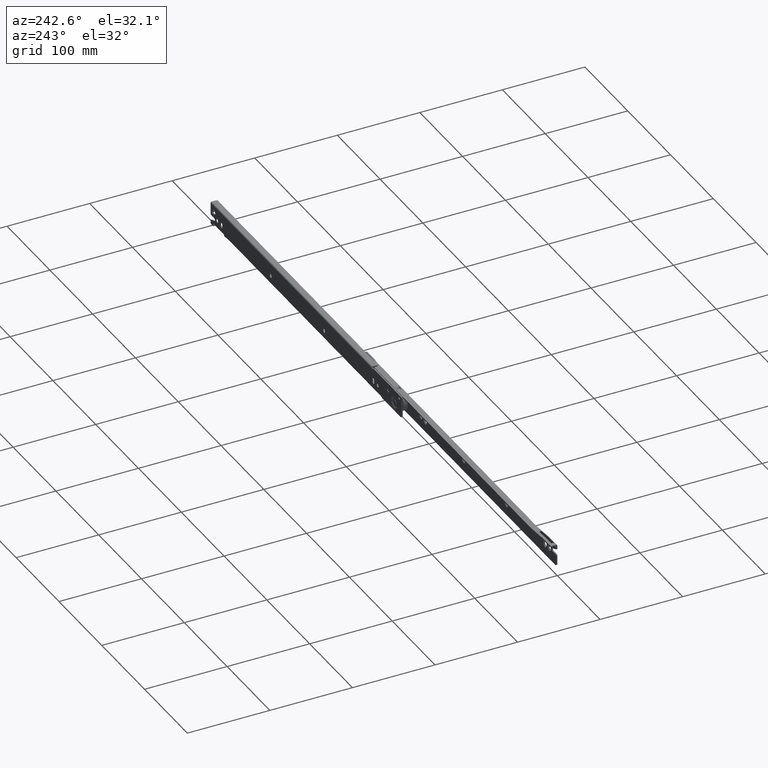
[diagram: clean part render]
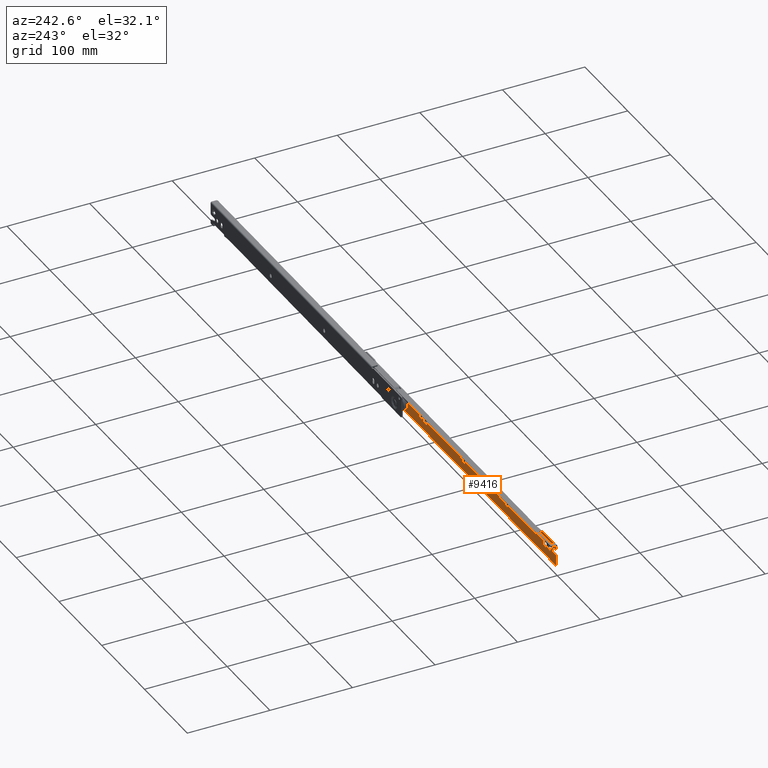
[diagram: same view with one face highlighted and labeled with its STEP entity id]
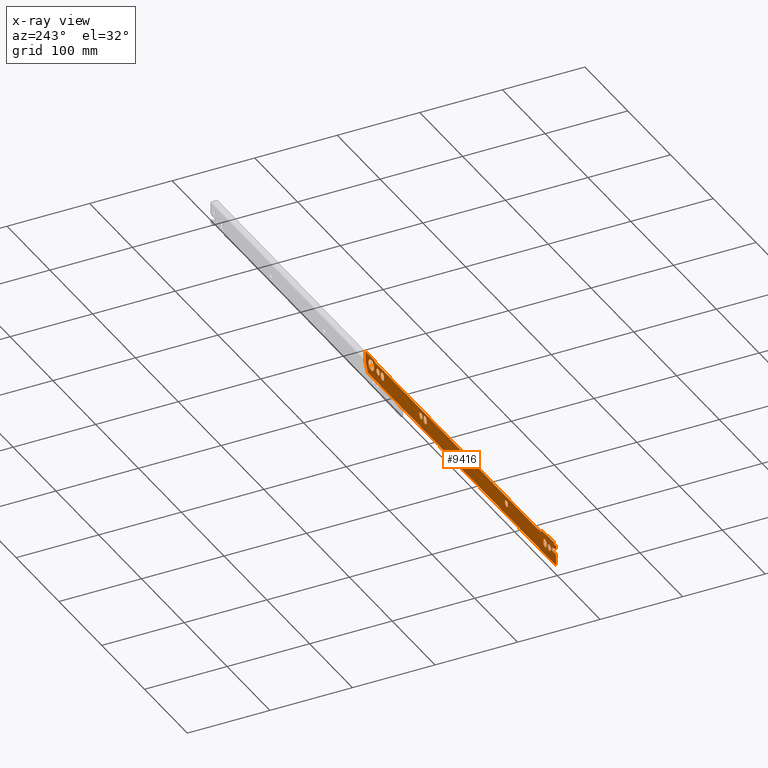
[diagram: x-ray of the same camera — body ghosted, the highlighted face saturated]
A machine part, auxiliary view. The second image highlights one B-rep face of the part: STEP entity #9416.
The next image is the same camera in x-ray: the body ghosted, the highlighted face saturated — about 0% of this face is hidden behind the body in this view.
In plain terms, the highlighted face is a freeform B-spline surface patch.
Its self-contained STEP definition (entity closure, byte-faithful):
#5309=CARTESIAN_POINT('',(412.261559997824920,1.500000001946444,14.294221622718309));
#5310=VERTEX_POINT('',#5309);
#5316=CARTESIAN_POINT('',(416.0,1.500000000000000,17.750000000000000));
#5317=VERTEX_POINT('',#5316);
#5318=CARTESIAN_POINT('',(416.0,1.500000000000000,17.750000000000000));
#5319=CARTESIAN_POINT('',(412.533535681583540,1.500000000000001,17.750000000000011));
#5320=CARTESIAN_POINT('',(412.261559997824860,1.500000001946444,14.294221622718311));
#5328=(BOUNDED_CURVE()B_SPLINE_CURVE(2,(#5318,#5319,#5320),.UNSPECIFIED.,.F.,.U.)B_SPLINE_CURVE_WITH_KNOTS((3,3),(0.0,0.236331299385391),.UNSPECIFIED.)CURVE()GEOMETRIC_REPRESENTATION_ITEM()RATIONAL_B_SPLINE_CURVE((1.0,0.723120660066588,0.969723353568637))REPRESENTATION_ITEM(''));
#5329=EDGE_CURVE('',#5317,#5310,#5328,.T.);
#5331=CARTESIAN_POINT('',(419.738440002175200,1.500000001946422,13.705778377281700));
#5332=VERTEX_POINT('',#5331);
#5333=CARTESIAN_POINT('',(419.738440002175200,1.500000001946422,13.705778377281700));
#5334=CARTESIAN_POINT('',(419.749999999999940,1.500000000000000,13.852662085056684));
#5335=CARTESIAN_POINT('',(419.749999999999890,1.500000000000000,14.0));
#5336=CARTESIAN_POINT('',(419.750000000000000,1.500000000000000,17.750000000000004));
#5337=CARTESIAN_POINT('',(416.0,1.500000000000000,17.750000000000000));
#5345=(BOUNDED_CURVE()B_SPLINE_CURVE(2,(#5333,#5334,#5335,#5336,#5337),.UNSPECIFIED.,.F.,.U.)B_SPLINE_CURVE_WITH_KNOTS((3,2,3),(0.736331299385392,0.750000000000000,1.0),.UNSPECIFIED.)CURVE()GEOMETRIC_REPRESENTATION_ITEM()RATIONAL_B_SPLINE_CURVE((0.969723353568638,0.983986121119960,1.0,0.707106781186547,1.0))REPRESENTATION_ITEM(''));
#5346=EDGE_CURVE('',#5332,#5317,#5345,.T.);
#5422=CARTESIAN_POINT('',(416.0,1.500000000000000,10.250000000000000));
#5423=VERTEX_POINT('',#5422);
#5424=CARTESIAN_POINT('',(416.0,1.500000000000000,10.250000000000000));
#5425=CARTESIAN_POINT('',(419.466464318416340,1.500000000000001,10.250000000000000));
#5426=CARTESIAN_POINT('',(419.738440002175250,1.500000001946422,13.705778377281709));
#5434=(BOUNDED_CURVE()B_SPLINE_CURVE(2,(#5424,#5425,#5426),.UNSPECIFIED.,.F.,.U.)B_SPLINE_CURVE_WITH_KNOTS((3,3),(0.500000000000000,0.736331299385391),.UNSPECIFIED.)CURVE()GEOMETRIC_REPRESENTATION_ITEM()RATIONAL_B_SPLINE_CURVE((1.0,0.723120660066589,0.969723353568636))REPRESENTATION_ITEM(''));
#5435=EDGE_CURVE('',#5423,#5332,#5434,.T.);
#5437=CARTESIAN_POINT('',(412.261559997824920,1.500000001946444,14.294221622718304));
#5438=CARTESIAN_POINT('',(412.250000000000000,1.500000000000001,14.147337914943325));
#5439=CARTESIAN_POINT('',(412.250000000000000,1.500000000000000,14.0));
#5440=CARTESIAN_POINT('',(412.250000000000060,1.500000000000000,10.250000000000000));
#5441=CARTESIAN_POINT('',(416.0,1.500000000000000,10.250000000000000));
#5449=(BOUNDED_CURVE()B_SPLINE_CURVE(2,(#5437,#5438,#5439,#5440,#5441),.UNSPECIFIED.,.F.,.U.)B_SPLINE_CURVE_WITH_KNOTS((3,2,3),(0.236331299385391,0.250000000000000,0.500000000000000),.UNSPECIFIED.)CURVE()GEOMETRIC_REPRESENTATION_ITEM()RATIONAL_B_SPLINE_CURVE((0.969723353568637,0.983986121119959,1.0,0.707106781186547,1.0))REPRESENTATION_ITEM(''));
#5450=EDGE_CURVE('',#5310,#5423,#5449,.T.);
#5491=CARTESIAN_POINT('',(312.261559997824800,1.500000001946456,14.294221622718309));
#5492=VERTEX_POINT('',#5491);
#5498=CARTESIAN_POINT('',(316.0,1.500000000000000,17.750000000000000));
#5499=VERTEX_POINT('',#5498);
#5500=CARTESIAN_POINT('',(316.0,1.500000000000000,17.750000000000000));
#5501=CARTESIAN_POINT('',(312.533535681583600,1.500000000000000,17.750000000000007));
#5502=CARTESIAN_POINT('',(312.261559997824800,1.500000001946457,14.294221622718304));
#5510=(BOUNDED_CURVE()B_SPLINE_CURVE(2,(#5500,#5501,#5502),.UNSPECIFIED.,.F.,.U.)B_SPLINE_CURVE_WITH_KNOTS((3,3),(0.0,0.236331299385391),.UNSPECIFIED.)CURVE()GEOMETRIC_REPRESENTATION_ITEM()RATIONAL_B_SPLINE_CURVE((1.0,0.723120660066588,0.969723353568637))REPRESENTATION_ITEM(''));
#5511=EDGE_CURVE('',#5499,#5492,#5510,.T.);
#5513=CARTESIAN_POINT('',(319.738440002175200,1.500000001946456,13.705778377281691));
#5514=VERTEX_POINT('',#5513);
#5515=CARTESIAN_POINT('',(319.738440002175250,1.500000001946456,13.705778377281691));
#5516=CARTESIAN_POINT('',(319.750000000000000,1.500000000000000,13.852662085056677));
#5517=CARTESIAN_POINT('',(319.750000000000000,1.500000000000000,14.0));
#5518=CARTESIAN_POINT('',(319.750000000000060,1.500000000000000,17.750000000000004));
#5519=CARTESIAN_POINT('',(316.0,1.500000000000000,17.750000000000000));
#5527=(BOUNDED_CURVE()B_SPLINE_CURVE(2,(#5515,#5516,#5517,#5518,#5519),.UNSPECIFIED.,.F.,.U.)B_SPLINE_CURVE_WITH_KNOTS((3,2,3),(0.736331299385391,0.750000000000000,1.0),.UNSPECIFIED.)CURVE()GEOMETRIC_REPRESENTATION_ITEM()RATIONAL_B_SPLINE_CURVE((0.969723353568637,0.983986121119959,1.0,0.707106781186547,1.0))REPRESENTATION_ITEM(''));
#5528=EDGE_CURVE('',#5514,#5499,#5527,.T.);
#5604=CARTESIAN_POINT('',(316.0,1.500000000000000,10.250000000000000));
#5605=VERTEX_POINT('',#5604);
#5606=CARTESIAN_POINT('',(316.0,1.500000000000000,10.250000000000000));
#5607=CARTESIAN_POINT('',(319.466464318416460,1.500000000000001,10.250000000000000));
#5608=CARTESIAN_POINT('',(319.738440002175250,1.500000001946457,13.705778377281689));
#5616=(BOUNDED_CURVE()B_SPLINE_CURVE(2,(#5606,#5607,#5608),.UNSPECIFIED.,.F.,.U.)B_SPLINE_CURVE_WITH_KNOTS((3,3),(0.500000000000000,0.736331299385391),.UNSPECIFIED.)CURVE()GEOMETRIC_REPRESENTATION_ITEM()RATIONAL_B_SPLINE_CURVE((1.0,0.723120660066589,0.969723353568636))REPRESENTATION_ITEM(''));
#5617=EDGE_CURVE('',#5605,#5514,#5616,.T.);
#5619=CARTESIAN_POINT('',(312.261559997824800,1.500000001946457,14.294221622718307));
#5620=CARTESIAN_POINT('',(312.249999999999940,1.500000000000000,14.147337914943327));
#5621=CARTESIAN_POINT('',(312.250000000000000,1.500000000000000,14.0));
#5622=CARTESIAN_POINT('',(312.250000000000110,1.500000000000000,10.250000000000000));
#5623=CARTESIAN_POINT('',(316.0,1.500000000000000,10.250000000000000));
#5631=(BOUNDED_CURVE()B_SPLINE_CURVE(2,(#5619,#5620,#5621,#5622,#5623),.UNSPECIFIED.,.F.,.U.)B_SPLINE_CURVE_WITH_KNOTS((3,2,3),(0.236331299385391,0.250000000000000,0.500000000000000),.UNSPECIFIED.)CURVE()GEOMETRIC_REPRESENTATION_ITEM()RATIONAL_B_SPLINE_CURVE((0.969723353568637,0.983986121119959,1.0,0.707106781186547,1.0))REPRESENTATION_ITEM(''));
#5632=EDGE_CURVE('',#5492,#5605,#5631,.T.);
#5673=CARTESIAN_POINT('',(212.261559997824800,1.500000001946453,14.294221622718309));
#5674=VERTEX_POINT('',#5673);
#5680=CARTESIAN_POINT('',(216.0,1.500000000000000,17.750000000000050));
#5681=VERTEX_POINT('',#5680);
#5682=CARTESIAN_POINT('',(216.0,1.500000000000000,17.750000000000050));
#5683=CARTESIAN_POINT('',(212.533535681583520,1.500000000000000,17.750000000000050));
#5684=CARTESIAN_POINT('',(212.261559997824720,1.500000001946453,14.294221622718311));
#5692=(BOUNDED_CURVE()B_SPLINE_CURVE(2,(#5682,#5683,#5684),.UNSPECIFIED.,.F.,.U.)B_SPLINE_CURVE_WITH_KNOTS((3,3),(0.0,0.236331299385391),.UNSPECIFIED.)CURVE()GEOMETRIC_REPRESENTATION_ITEM()RATIONAL_B_SPLINE_CURVE((1.0,0.723120660066588,0.969723353568637))REPRESENTATION_ITEM(''));
#5693=EDGE_CURVE('',#5681,#5674,#5692,.T.);
#5695=CARTESIAN_POINT('',(219.738440002175200,1.500000001946456,13.705778377281691));
#5696=VERTEX_POINT('',#5695);
#5697=CARTESIAN_POINT('',(219.738440002175200,1.500000001946455,13.705778377281696));
#5698=CARTESIAN_POINT('',(219.750000000000110,1.500000000000001,13.852662085056675));
#5699=CARTESIAN_POINT('',(219.750000000000110,1.500000000000000,14.0));
#5700=CARTESIAN_POINT('',(219.750000000000110,1.500000000000000,17.750000000000057));
#5701=CARTESIAN_POINT('',(216.0,1.500000000000000,17.750000000000050));
#5709=(BOUNDED_CURVE()B_SPLINE_CURVE(2,(#5697,#5698,#5699,#5700,#5701),.UNSPECIFIED.,.F.,.U.)B_SPLINE_CURVE_WITH_KNOTS((3,2,3),(0.736331299385391,0.750000000000000,1.0),.UNSPECIFIED.)CURVE()GEOMETRIC_REPRESENTATION_ITEM()RATIONAL_B_SPLINE_CURVE((0.969723353568637,0.983986121119959,1.0,0.707106781186548,1.0))REPRESENTATION_ITEM(''));
#5710=EDGE_CURVE('',#5696,#5681,#5709,.T.);
#5786=CARTESIAN_POINT('',(216.0,1.500000000000000,10.249999999999950));
#5787=VERTEX_POINT('',#5786);
#5788=CARTESIAN_POINT('',(216.0,1.500000000000000,10.249999999999950));
#5789=CARTESIAN_POINT('',(219.466464318416540,1.500000000000000,10.249999999999947));
#5790=CARTESIAN_POINT('',(219.738440002175200,1.500000001946456,13.705778377281689));
#5798=(BOUNDED_CURVE()B_SPLINE_CURVE(2,(#5788,#5789,#5790),.UNSPECIFIED.,.F.,.U.)B_SPLINE_CURVE_WITH_KNOTS((3,3),(0.500000000000000,0.736331299385391),.UNSPECIFIED.)CURVE()GEOMETRIC_REPRESENTATION_ITEM()RATIONAL_B_SPLINE_CURVE((1.0,0.723120660066589,0.969723353568636))REPRESENTATION_ITEM(''));
#5799=EDGE_CURVE('',#5787,#5696,#5798,.T.);
#5801=CARTESIAN_POINT('',(212.261559997824750,1.500000001946453,14.294221622718313));
#5802=CARTESIAN_POINT('',(212.249999999999970,1.500000000000000,14.147337914943323));
#5803=CARTESIAN_POINT('',(212.249999999999890,1.500000000000000,14.0));
#5804=CARTESIAN_POINT('',(212.249999999999970,1.500000000000000,10.249999999999945));
#5805=CARTESIAN_POINT('',(216.0,1.500000000000000,10.249999999999950));
#5813=(BOUNDED_CURVE()B_SPLINE_CURVE(2,(#5801,#5802,#5803,#5804,#5805),.UNSPECIFIED.,.F.,.U.)B_SPLINE_CURVE_WITH_KNOTS((3,2,3),(0.236331299385391,0.250000000000000,0.500000000000000),.UNSPECIFIED.)CURVE()GEOMETRIC_REPRESENTATION_ITEM()RATIONAL_B_SPLINE_CURVE((0.969723353568637,0.983986121119959,1.0,0.707106781186548,1.0))REPRESENTATION_ITEM(''));
#5814=EDGE_CURVE('',#5674,#5787,#5813,.T.);
#5855=CARTESIAN_POINT('',(112.261559997824800,1.500000001946451,14.294221622718309));
#5856=VERTEX_POINT('',#5855);
#5862=CARTESIAN_POINT('',(116.0,1.500000000000000,17.750000000000050));
#5863=VERTEX_POINT('',#5862);
#5864=CARTESIAN_POINT('',(116.0,1.500000000000000,17.750000000000050));
#5865=CARTESIAN_POINT('',(112.533535681583500,1.500000000000000,17.750000000000057));
#5866=CARTESIAN_POINT('',(112.261559997824780,1.500000001946451,14.294221622718315));
#5874=(BOUNDED_CURVE()B_SPLINE_CURVE(2,(#5864,#5865,#5866),.UNSPECIFIED.,.F.,.U.)B_SPLINE_CURVE_WITH_KNOTS((3,3),(0.0,0.236331299385391),.UNSPECIFIED.)CURVE()GEOMETRIC_REPRESENTATION_ITEM()RATIONAL_B_SPLINE_CURVE((1.0,0.723120660066589,0.969723353568637))REPRESENTATION_ITEM(''));
#5875=EDGE_CURVE('',#5863,#5856,#5874,.T.);
#5877=CARTESIAN_POINT('',(119.738440002175300,1.500000001946456,13.705778377281691));
#5878=VERTEX_POINT('',#5877);
#5879=CARTESIAN_POINT('',(119.738440002175300,1.500000001946456,13.705778377281693));
#5880=CARTESIAN_POINT('',(119.750000000000100,1.500000000000000,13.852662085056682));
#5881=CARTESIAN_POINT('',(119.750000000000100,1.500000000000000,14.0));
#5882=CARTESIAN_POINT('',(119.750000000000070,1.500000000000000,17.750000000000057));
#5883=CARTESIAN_POINT('',(116.0,1.500000000000000,17.750000000000050));
#5891=(BOUNDED_CURVE()B_SPLINE_CURVE(2,(#5879,#5880,#5881,#5882,#5883),.UNSPECIFIED.,.F.,.U.)B_SPLINE_CURVE_WITH_KNOTS((3,2,3),(0.736331299385391,0.750000000000000,1.0),.UNSPECIFIED.)CURVE()GEOMETRIC_REPRESENTATION_ITEM()RATIONAL_B_SPLINE_CURVE((0.969723353568637,0.983986121119959,1.0,0.707106781186548,1.0))REPRESENTATION_ITEM(''));
#5892=EDGE_CURVE('',#5878,#5863,#5891,.T.);
#5968=CARTESIAN_POINT('',(116.0,1.500000000000000,10.249999999999950));
#5969=VERTEX_POINT('',#5968);
#5970=CARTESIAN_POINT('',(116.0,1.500000000000000,10.249999999999950));
#5971=CARTESIAN_POINT('',(119.466464318416510,1.500000000000000,10.249999999999947));
#5972=CARTESIAN_POINT('',(119.738440002175220,1.500000001946457,13.705778377281689));
#5980=(BOUNDED_CURVE()B_SPLINE_CURVE(2,(#5970,#5971,#5972),.UNSPECIFIED.,.F.,.U.)B_SPLINE_CURVE_WITH_KNOTS((3,3),(0.500000000000000,0.736331299385391),.UNSPECIFIED.)CURVE()GEOMETRIC_REPRESENTATION_ITEM()RATIONAL_B_SPLINE_CURVE((1.0,0.723120660066589,0.969723353568636))REPRESENTATION_ITEM(''));
#5981=EDGE_CURVE('',#5969,#5878,#5980,.T.);
#5983=CARTESIAN_POINT('',(112.261559997824790,1.500000001946451,14.294221622718316));
#5984=CARTESIAN_POINT('',(112.249999999999900,1.499999999999999,14.147337914943325));
#5985=CARTESIAN_POINT('',(112.249999999999900,1.500000000000000,14.0));
#5986=CARTESIAN_POINT('',(112.249999999999930,1.500000000000000,10.249999999999945));
#5987=CARTESIAN_POINT('',(116.0,1.500000000000000,10.249999999999950));
#5995=(BOUNDED_CURVE()B_SPLINE_CURVE(2,(#5983,#5984,#5985,#5986,#5987),.UNSPECIFIED.,.F.,.U.)B_SPLINE_CURVE_WITH_KNOTS((3,2,3),(0.236331299385391,0.250000000000000,0.500000000000000),.UNSPECIFIED.)CURVE()GEOMETRIC_REPRESENTATION_ITEM()RATIONAL_B_SPLINE_CURVE((0.969723353568637,0.983986121119959,1.0,0.707106781186548,1.0))REPRESENTATION_ITEM(''));
#5996=EDGE_CURVE('',#5856,#5969,#5995,.T.);
#6295=CARTESIAN_POINT('',(438.499752501344180,1.499999998474266,14.056722492052620));
#6296=VERTEX_POINT('',#6295);
#6302=CARTESIAN_POINT('',(432.0,1.500000000000000,7.500000000000001));
#6303=VERTEX_POINT('',#6302);
#6304=CARTESIAN_POINT('',(438.499752501344230,1.499999998474266,14.056722492052616));
#6305=CARTESIAN_POINT('',(438.500000000000000,1.500000000000000,14.028361791635083));
#6306=CARTESIAN_POINT('',(438.500000000000000,1.500000000000000,14.0));
#6307=CARTESIAN_POINT('',(438.499999999999890,1.500000000000000,7.500000000000004));
#6308=CARTESIAN_POINT('',(432.0,1.500000000000000,7.500000000000001));
#6316=(BOUNDED_CURVE()B_SPLINE_CURVE(2,(#6304,#6305,#6306,#6307,#6308),.UNSPECIFIED.,.F.,.U.)B_SPLINE_CURVE_WITH_KNOTS((3,2,3),(0.248460105052562,0.250000000000000,0.500000000000000),.UNSPECIFIED.)CURVE()GEOMETRIC_REPRESENTATION_ITEM()RATIONAL_B_SPLINE_CURVE((0.996414026683022,0.998195900848841,1.0,0.707106781186547,1.0))REPRESENTATION_ITEM(''));
#6317=EDGE_CURVE('',#6296,#6303,#6316,.T.);
#6319=CARTESIAN_POINT('',(432.0,1.500000000000000,20.500000000000000));
#6320=VERTEX_POINT('',#6319);
#6321=CARTESIAN_POINT('',(432.0,1.500000000000000,7.500000000000001));
#6322=CARTESIAN_POINT('',(425.500000000000110,1.500000000000000,7.500000000000004));
#6323=CARTESIAN_POINT('',(425.500000000000000,1.500000000000000,14.0));
#6324=CARTESIAN_POINT('',(425.500000000000110,1.500000000000000,20.499999999999996));
#6325=CARTESIAN_POINT('',(432.0,1.500000000000000,20.500000000000000));
#6333=(BOUNDED_CURVE()B_SPLINE_CURVE(2,(#6321,#6322,#6323,#6324,#6325),.UNSPECIFIED.,.F.,.U.)B_SPLINE_CURVE_WITH_KNOTS((3,2,3),(0.500000000000000,0.750000000000000,1.0),.UNSPECIFIED.)CURVE()GEOMETRIC_REPRESENTATION_ITEM()RATIONAL_B_SPLINE_CURVE((1.0,0.707106781186547,1.0,0.707106781186547,1.0))REPRESENTATION_ITEM(''));
#6334=EDGE_CURVE('',#6303,#6320,#6333,.T.);
#6336=CARTESIAN_POINT('',(436.706995161088910,1.499999999994832,18.482655078583800));
#6337=VERTEX_POINT('',#6336);
#6338=CARTESIAN_POINT('',(432.0,1.500000000000000,20.500000000000000));
#6339=CARTESIAN_POINT('',(434.785798909625560,1.500000000000000,20.500000000000004));
#6340=CARTESIAN_POINT('',(436.706995161088910,1.499999999994832,18.482655078583800));
#6348=(BOUNDED_CURVE()B_SPLINE_CURVE(2,(#6338,#6339,#6340),.UNSPECIFIED.,.F.,.U.)B_SPLINE_CURVE_WITH_KNOTS((3,3),(0.0,0.128682976119413),.UNSPECIFIED.)CURVE()GEOMETRIC_REPRESENTATION_ITEM()RATIONAL_B_SPLINE_CURVE((1.0,0.849238515671562,0.853680523243633))REPRESENTATION_ITEM(''));
#6349=EDGE_CURVE('',#6320,#6337,#6348,.T.);
#6387=CARTESIAN_POINT('',(436.706995161088860,1.499999999994831,18.482655078583804));
#6388=CARTESIAN_POINT('',(438.477350819686250,1.500000000000000,16.623699756201106));
#6389=CARTESIAN_POINT('',(438.499752501344180,1.499999998474266,14.056722492052613));
#6397=(BOUNDED_CURVE()B_SPLINE_CURVE(2,(#6387,#6388,#6389),.UNSPECIFIED.,.F.,.U.)B_SPLINE_CURVE_WITH_KNOTS((3,3),(0.128682976119413,0.248460105052561),.UNSPECIFIED.)CURVE()GEOMETRIC_REPRESENTATION_ITEM()RATIONAL_B_SPLINE_CURVE((0.853680523243633,0.857815109882259,0.996414026683021))REPRESENTATION_ITEM(''));
#6398=EDGE_CURVE('',#6337,#6296,#6397,.T.);
#6439=CARTESIAN_POINT('',(12.261559997824770,1.500000001946452,14.294221622718309));
#6440=VERTEX_POINT('',#6439);
#6446=CARTESIAN_POINT('',(16.0,1.500000000000000,17.750000000000039));
#6447=VERTEX_POINT('',#6446);
#6448=CARTESIAN_POINT('',(16.0,1.500000000000000,17.750000000000039));
#6449=CARTESIAN_POINT('',(12.533535681583517,1.500000000000000,17.750000000000050));
#6450=CARTESIAN_POINT('',(12.261559997824770,1.500000001946452,14.294221622718311));
#6458=(BOUNDED_CURVE()B_SPLINE_CURVE(2,(#6448,#6449,#6450),.UNSPECIFIED.,.F.,.U.)B_SPLINE_CURVE_WITH_KNOTS((3,3),(0.0,0.236331299385391),.UNSPECIFIED.)CURVE()GEOMETRIC_REPRESENTATION_ITEM()RATIONAL_B_SPLINE_CURVE((1.0,0.723120660066588,0.969723353568637))REPRESENTATION_ITEM(''));
#6459=EDGE_CURVE('',#6447,#6440,#6458,.T.);
#6461=CARTESIAN_POINT('',(19.738440002175231,1.500000001946452,13.705778377281691));
#6462=VERTEX_POINT('',#6461);
#6463=CARTESIAN_POINT('',(19.738440002175228,1.500000001946452,13.705778377281696));
#6464=CARTESIAN_POINT('',(19.750000000000043,1.500000000000001,13.852662085056675));
#6465=CARTESIAN_POINT('',(19.750000000000050,1.500000000000000,14.0));
#6466=CARTESIAN_POINT('',(19.750000000000050,1.500000000000000,17.750000000000043));
#6467=CARTESIAN_POINT('',(16.0,1.500000000000000,17.750000000000039));
#6475=(BOUNDED_CURVE()B_SPLINE_CURVE(2,(#6463,#6464,#6465,#6466,#6467),.UNSPECIFIED.,.F.,.U.)B_SPLINE_CURVE_WITH_KNOTS((3,2,3),(0.736331299385391,0.750000000000000,1.0),.UNSPECIFIED.)CURVE()GEOMETRIC_REPRESENTATION_ITEM()RATIONAL_B_SPLINE_CURVE((0.969723353568637,0.983986121119959,1.0,0.707106781186548,1.0))REPRESENTATION_ITEM(''));
#6476=EDGE_CURVE('',#6462,#6447,#6475,.T.);
#6552=CARTESIAN_POINT('',(16.0,1.500000000000000,10.249999999999959));
#6553=VERTEX_POINT('',#6552);
#6554=CARTESIAN_POINT('',(16.0,1.500000000000000,10.249999999999959));
#6555=CARTESIAN_POINT('',(19.466464318416467,1.500000000000000,10.249999999999956));
#6556=CARTESIAN_POINT('',(19.738440002175228,1.500000001946452,13.705778377281689));
#6564=(BOUNDED_CURVE()B_SPLINE_CURVE(2,(#6554,#6555,#6556),.UNSPECIFIED.,.F.,.U.)B_SPLINE_CURVE_WITH_KNOTS((3,3),(0.500000000000000,0.736331299385391),.UNSPECIFIED.)CURVE()GEOMETRIC_REPRESENTATION_ITEM()RATIONAL_B_SPLINE_CURVE((1.0,0.723120660066589,0.969723353568636))REPRESENTATION_ITEM(''));
#6565=EDGE_CURVE('',#6553,#6462,#6564,.T.);
#6567=CARTESIAN_POINT('',(12.261559997824770,1.500000001946452,14.294221622718311));
#6568=CARTESIAN_POINT('',(12.249999999999961,1.500000000000000,14.147337914943323));
#6569=CARTESIAN_POINT('',(12.249999999999959,1.500000000000000,14.0));
#6570=CARTESIAN_POINT('',(12.249999999999956,1.500000000000000,10.249999999999956));
#6571=CARTESIAN_POINT('',(16.0,1.500000000000000,10.249999999999959));
#6579=(BOUNDED_CURVE()B_SPLINE_CURVE(2,(#6567,#6568,#6569,#6570,#6571),.UNSPECIFIED.,.F.,.U.)B_SPLINE_CURVE_WITH_KNOTS((3,2,3),(0.236331299385391,0.250000000000000,0.500000000000000),.UNSPECIFIED.)CURVE()GEOMETRIC_REPRESENTATION_ITEM()RATIONAL_B_SPLINE_CURVE((0.969723353568637,0.983986121119959,1.0,0.707106781186548,1.0))REPRESENTATION_ITEM(''));
#6580=EDGE_CURVE('',#6440,#6553,#6579,.T.);
#6955=CARTESIAN_POINT('',(402.250000000000000,1.500000000000000,15.0));
#6956=VERTEX_POINT('',#6955);
#6971=CARTESIAN_POINT('',(402.250000000000000,1.500000000000000,12.999999999999799));
#6972=VERTEX_POINT('',#6971);
#6978=CARTESIAN_POINT('',(402.250000000000000,1.500000000000000,15.0));
#6979=CARTESIAN_POINT('',(402.250000000000000,1.500000000000000,12.999999999999799));
#6980=QUASI_UNIFORM_CURVE('',1,(#6978,#6979),.UNSPECIFIED.,.F.,.U.);
#6981=EDGE_CURVE('',#6956,#6972,#6980,.T.);
#7006=CARTESIAN_POINT('',(409.750000000000000,1.500000000000000,12.999999999999799));
#7007=VERTEX_POINT('',#7006);
#7013=CARTESIAN_POINT('',(402.250000000000110,1.500000000000000,12.999999999999799));
#7014=CARTESIAN_POINT('',(402.249999999999940,1.500000000000000,9.249999999999799));
#7015=CARTESIAN_POINT('',(406.0,1.500000000000000,9.249999999999799));
#7016=CARTESIAN_POINT('',(409.749999999999940,1.500000000000000,9.249999999999799));
#7017=CARTESIAN_POINT('',(409.750000000000000,1.500000000000000,12.999999999999799));
#7025=(BOUNDED_CURVE()B_SPLINE_CURVE(2,(#7013,#7014,#7015,#7016,#7017),.UNSPECIFIED.,.F.,.U.)B_SPLINE_CURVE_WITH_KNOTS((3,2,3),(0.0,0.500000000000000,1.0),.UNSPECIFIED.)CURVE()GEOMETRIC_REPRESENTATION_ITEM()RATIONAL_B_SPLINE_CURVE((1.0,0.707106781186547,1.0,0.707106781186547,1.0))REPRESENTATION_ITEM(''));
#7026=EDGE_CURVE('',#6972,#7007,#7025,.T.);
#7065=CARTESIAN_POINT('',(409.750000000000000,1.500000000000000,15.0));
#7066=VERTEX_POINT('',#7065);
#7090=CARTESIAN_POINT('',(409.750000000000000,1.500000000000000,15.0));
#7091=CARTESIAN_POINT('',(409.749999999999940,1.500000000000000,18.750000000000007));
#7092=CARTESIAN_POINT('',(406.0,1.500000000000000,18.750000000000000));
#7093=CARTESIAN_POINT('',(402.249999999999940,1.500000000000000,18.750000000000007));
#7094=CARTESIAN_POINT('',(402.250000000000110,1.500000000000000,15.0));
#7102=(BOUNDED_CURVE()B_SPLINE_CURVE(2,(#7090,#7091,#7092,#7093,#7094),.UNSPECIFIED.,.F.,.U.)B_SPLINE_CURVE_WITH_KNOTS((3,2,3),(0.0,0.500000000000000,1.0),.UNSPECIFIED.)CURVE()GEOMETRIC_REPRESENTATION_ITEM()RATIONAL_B_SPLINE_CURVE((1.0,0.707106781186547,1.0,0.707106781186547,1.0))REPRESENTATION_ITEM(''));
#7103=EDGE_CURVE('',#7066,#6956,#7102,.T.);
#7120=CARTESIAN_POINT('',(409.750000000000000,1.500000000000000,12.999999999999799));
#7121=CARTESIAN_POINT('',(409.750000000000000,1.500000000000000,15.0));
#7122=QUASI_UNIFORM_CURVE('',1,(#7120,#7121),.UNSPECIFIED.,.F.,.U.);
#7123=EDGE_CURVE('',#7007,#7066,#7122,.T.);
#7133=CARTESIAN_POINT('',(302.250000000000000,1.500000000000000,15.0));
#7134=VERTEX_POINT('',#7133);
#7149=CARTESIAN_POINT('',(302.250000000000000,1.500000000000000,12.999999999999799));
#7150=VERTEX_POINT('',#7149);
#7156=CARTESIAN_POINT('',(302.250000000000000,1.500000000000000,15.0));
#7157=CARTESIAN_POINT('',(302.250000000000000,1.500000000000000,12.999999999999799));
#7158=QUASI_UNIFORM_CURVE('',1,(#7156,#7157),.UNSPECIFIED.,.F.,.U.);
#7159=EDGE_CURVE('',#7134,#7150,#7158,.T.);
#7184=CARTESIAN_POINT('',(309.750000000000000,1.500000000000000,12.999999999999799));
#7185=VERTEX_POINT('',#7184);
#7191=CARTESIAN_POINT('',(302.250000000000000,1.500000000000000,12.999999999999799));
#7192=CARTESIAN_POINT('',(302.250000000000060,1.500000000000000,9.249999999999799));
#7193=CARTESIAN_POINT('',(306.0,1.500000000000000,9.249999999999799));
#7194=CARTESIAN_POINT('',(309.750000000000060,1.500000000000000,9.249999999999799));
#7195=CARTESIAN_POINT('',(309.749999999999890,1.500000000000000,12.999999999999799));
#7203=(BOUNDED_CURVE()B_SPLINE_CURVE(2,(#7191,#7192,#7193,#7194,#7195),.UNSPECIFIED.,.F.,.U.)B_SPLINE_CURVE_WITH_KNOTS((3,2,3),(0.0,0.500000000000000,1.0),.UNSPECIFIED.)CURVE()GEOMETRIC_REPRESENTATION_ITEM()RATIONAL_B_SPLINE_CURVE((1.0,0.707106781186547,1.0,0.707106781186547,1.0))REPRESENTATION_ITEM(''));
#7204=EDGE_CURVE('',#7150,#7185,#7203,.T.);
#7243=CARTESIAN_POINT('',(309.750000000000000,1.500000000000000,15.0));
#7244=VERTEX_POINT('',#7243);
#7268=CARTESIAN_POINT('',(309.749999999999890,1.500000000000000,15.0));
#7269=CARTESIAN_POINT('',(309.750000000000060,1.500000000000000,18.750000000000007));
#7270=CARTESIAN_POINT('',(306.0,1.500000000000000,18.750000000000000));
#7271=CARTESIAN_POINT('',(302.250000000000060,1.500000000000000,18.750000000000007));
#7272=CARTESIAN_POINT('',(302.250000000000000,1.500000000000000,15.0));
#7280=(BOUNDED_CURVE()B_SPLINE_CURVE(2,(#7268,#7269,#7270,#7271,#7272),.UNSPECIFIED.,.F.,.U.)B_SPLINE_CURVE_WITH_KNOTS((3,2,3),(0.0,0.500000000000000,1.0),.UNSPECIFIED.)CURVE()GEOMETRIC_REPRESENTATION_ITEM()RATIONAL_B_SPLINE_CURVE((1.0,0.707106781186547,1.0,0.707106781186547,1.0))REPRESENTATION_ITEM(''));
#7281=EDGE_CURVE('',#7244,#7134,#7280,.T.);
#7298=CARTESIAN_POINT('',(309.750000000000000,1.500000000000000,12.999999999999799));
#7299=CARTESIAN_POINT('',(309.750000000000000,1.500000000000000,15.0));
#7300=QUASI_UNIFORM_CURVE('',1,(#7298,#7299),.UNSPECIFIED.,.F.,.U.);
#7301=EDGE_CURVE('',#7185,#7244,#7300,.T.);
#7873=CARTESIAN_POINT('',(446.0,1.499999999999946,22.0));
#7874=VERTEX_POINT('',#7873);
#7880=CARTESIAN_POINT('',(444.0,1.499999999999946,24.0));
#7881=VERTEX_POINT('',#7880);
#7882=CARTESIAN_POINT('',(446.0,1.499999999999946,22.0));
#7883=CARTESIAN_POINT('',(445.999999999999940,1.499999999999946,23.999999999999996));
#7884=CARTESIAN_POINT('',(444.0,1.499999999999946,24.0));
#7892=(BOUNDED_CURVE()B_SPLINE_CURVE(2,(#7882,#7883,#7884),.UNSPECIFIED.,.F.,.U.)CURVE()GEOMETRIC_REPRESENTATION_ITEM()QUASI_UNIFORM_CURVE()RATIONAL_B_SPLINE_CURVE((1.0,0.707106781186548,1.0))REPRESENTATION_ITEM(''));
#7893=EDGE_CURVE('',#7874,#7881,#7892,.T.);
#7915=CARTESIAN_POINT('',(446.0,1.499999999999946,11.999999999999799));
#7916=VERTEX_POINT('',#7915);
#7922=CARTESIAN_POINT('',(446.0,1.499999999999946,11.999999999999799));
#7923=CARTESIAN_POINT('',(446.0,1.499999999999946,22.0));
#7924=QUASI_UNIFORM_CURVE('',1,(#7922,#7923),.UNSPECIFIED.,.F.,.U.);
#7925=EDGE_CURVE('',#7916,#7874,#7924,.T.);
#7943=CARTESIAN_POINT('',(440.552786384763980,1.499999999999946,1.105572814528704));
#7944=VERTEX_POINT('',#7943);
#7950=CARTESIAN_POINT('',(440.552786384763980,1.499999999999946,1.105572814528704));
#7951=CARTESIAN_POINT('',(446.0,1.499999999999946,11.999999999999799));
#7952=QUASI_UNIFORM_CURVE('',1,(#7950,#7951),.UNSPECIFIED.,.F.,.U.);
#7953=EDGE_CURVE('',#7944,#7916,#7952,.T.);
#7988=CARTESIAN_POINT('',(438.763932000000010,1.499999999999946,0.0));
#7989=VERTEX_POINT('',#7988);
#7995=CARTESIAN_POINT('',(438.763932000000010,1.499999999999946,0.0));
#7996=CARTESIAN_POINT('',(439.999999981770830,1.499999999999947,0.0));
#7997=CARTESIAN_POINT('',(440.552786384764200,1.499999999999946,1.105572814528627));
#8005=(BOUNDED_CURVE()B_SPLINE_CURVE(2,(#7995,#7996,#7997),.UNSPECIFIED.,.F.,.U.)CURVE()GEOMETRIC_REPRESENTATION_ITEM()QUASI_UNIFORM_CURVE()RATIONAL_B_SPLINE_CURVE((1.0,0.850650807539641,1.0))REPRESENTATION_ITEM(''));
#8006=EDGE_CURVE('',#7989,#7944,#8005,.T.);
#8026=CARTESIAN_POINT('',(422.0,1.499999999999946,22.500000000000000));
#8027=VERTEX_POINT('',#8026);
#8033=CARTESIAN_POINT('',(421.0,1.500000000000000,22.500000000000000));
#8034=VERTEX_POINT('',#8033);
#8035=CARTESIAN_POINT('',(422.0,1.499999999999946,22.500000000000000));
#8036=CARTESIAN_POINT('',(421.0,1.500000000000000,22.500000000000000));
#8037=QUASI_UNIFORM_CURVE('',1,(#8035,#8036),.UNSPECIFIED.,.F.,.U.);
#8038=EDGE_CURVE('',#8027,#8034,#8037,.T.);
#8060=CARTESIAN_POINT('',(426.0,1.499999999999946,24.0));
#8061=VERTEX_POINT('',#8060);
#8067=CARTESIAN_POINT('',(426.0,1.499999999999946,24.0));
#8068=CARTESIAN_POINT('',(422.0,1.499999999999946,22.500000000000000));
#8069=QUASI_UNIFORM_CURVE('',1,(#8067,#8068),.UNSPECIFIED.,.F.,.U.);
#8070=EDGE_CURVE('',#8061,#8027,#8069,.T.);
#8087=CARTESIAN_POINT('',(444.0,1.499999999999946,24.0));
#8088=CARTESIAN_POINT('',(426.0,1.499999999999946,24.0));
#8089=QUASI_UNIFORM_CURVE('',1,(#8087,#8088),.UNSPECIFIED.,.F.,.U.);
#8090=EDGE_CURVE('',#7881,#8061,#8089,.T.);
#8101=CARTESIAN_POINT('',(22.250000000000000,1.500000000000000,15.0));
#8102=VERTEX_POINT('',#8101);
#8117=CARTESIAN_POINT('',(22.250000000000000,1.500000000000000,12.999999999999799));
#8118=VERTEX_POINT('',#8117);
#8124=CARTESIAN_POINT('',(22.250000000000000,1.500000000000000,15.0));
#8125=CARTESIAN_POINT('',(22.250000000000000,1.500000000000000,12.999999999999799));
#8126=QUASI_UNIFORM_CURVE('',1,(#8124,#8125),.UNSPECIFIED.,.F.,.U.);
#8127=EDGE_CURVE('',#8102,#8118,#8126,.T.);
#8152=CARTESIAN_POINT('',(29.750000000000000,1.500000000000000,12.999999999999799));
#8153=VERTEX_POINT('',#8152);
#8159=CARTESIAN_POINT('',(22.250000000000000,1.500000000000000,12.999999999999799));
#8160=CARTESIAN_POINT('',(22.249999999999954,1.500000000000000,9.249999999999750));
#8161=CARTESIAN_POINT('',(26.0,1.500000000000000,9.249999999999750));
#8162=CARTESIAN_POINT('',(29.750000000000046,1.500000000000000,9.249999999999750));
#8163=CARTESIAN_POINT('',(29.750000000000050,1.500000000000000,12.999999999999799));
#8171=(BOUNDED_CURVE()B_SPLINE_CURVE(2,(#8159,#8160,#8161,#8162,#8163),.UNSPECIFIED.,.F.,.U.)B_SPLINE_CURVE_WITH_KNOTS((3,2,3),(0.0,0.500000000000000,1.0),.UNSPECIFIED.)CURVE()GEOMETRIC_REPRESENTATION_ITEM()RATIONAL_B_SPLINE_CURVE((1.0,0.707106781186547,1.0,0.707106781186547,1.0))REPRESENTATION_ITEM(''));
#8172=EDGE_CURVE('',#8118,#8153,#8171,.T.);
#8211=CARTESIAN_POINT('',(29.750000000000000,1.500000000000000,15.0));
#8212=VERTEX_POINT('',#8211);
#8236=CARTESIAN_POINT('',(29.750000000000050,1.500000000000000,15.0));
#8237=CARTESIAN_POINT('',(29.750000000000046,1.500000000000000,18.750000000000050));
#8238=CARTESIAN_POINT('',(26.0,1.500000000000000,18.750000000000050));
#8239=CARTESIAN_POINT('',(22.249999999999954,1.500000000000000,18.750000000000050));
#8240=CARTESIAN_POINT('',(22.250000000000000,1.500000000000000,15.0));
#8248=(BOUNDED_CURVE()B_SPLINE_CURVE(2,(#8236,#8237,#8238,#8239,#8240),.UNSPECIFIED.,.F.,.U.)B_SPLINE_CURVE_WITH_KNOTS((3,2,3),(0.0,0.500000000000000,1.0),.UNSPECIFIED.)CURVE()GEOMETRIC_REPRESENTATION_ITEM()RATIONAL_B_SPLINE_CURVE((1.0,0.707106781186547,1.0,0.707106781186547,1.0))REPRESENTATION_ITEM(''));
#8249=EDGE_CURVE('',#8212,#8102,#8248,.T.);
#8266=CARTESIAN_POINT('',(29.750000000000000,1.500000000000000,12.999999999999799));
#8267=CARTESIAN_POINT('',(29.750000000000000,1.500000000000000,15.0));
#8268=QUASI_UNIFORM_CURVE('',1,(#8266,#8267),.UNSPECIFIED.,.F.,.U.);
#8269=EDGE_CURVE('',#8153,#8212,#8268,.T.);
#8279=CARTESIAN_POINT('',(34.500000000000000,1.500000000000000,25.077586206896498));
#8280=VERTEX_POINT('',#8279);
#8295=CARTESIAN_POINT('',(34.500000000000000,1.500000000000000,23.575193530534701));
#8296=VERTEX_POINT('',#8295);
#8302=CARTESIAN_POINT('',(34.500000000000000,1.500000000000000,23.575193530534701));
#8303=CARTESIAN_POINT('',(34.500000000000000,1.500000000000000,25.077586206896498));
#8304=QUASI_UNIFORM_CURVE('',1,(#8302,#8303),.UNSPECIFIED.,.F.,.U.);
#8305=EDGE_CURVE('',#8296,#8280,#8304,.T.);
#8324=CARTESIAN_POINT('',(5.0,1.500000000000000,26.500000000000000));
#8325=VERTEX_POINT('',#8324);
#8331=CARTESIAN_POINT('',(5.0,1.500000000000000,25.0));
#8332=VERTEX_POINT('',#8331);
#8333=CARTESIAN_POINT('',(5.0,1.500000000000000,25.0));
#8334=CARTESIAN_POINT('',(5.0,1.500000000000000,26.500000000000000));
#8335=QUASI_UNIFORM_CURVE('',1,(#8333,#8334),.UNSPECIFIED.,.F.,.U.);
#8336=EDGE_CURVE('',#8332,#8325,#8335,.T.);
#8561=CARTESIAN_POINT('',(18.0,1.500000000000055,26.500000000000000));
#8562=VERTEX_POINT('',#8561);
#8591=CARTESIAN_POINT('',(18.0,1.500000000000055,26.500000000000000));
#8592=CARTESIAN_POINT('',(34.500000000000000,1.500000000000000,25.077586206896498));
#8593=QUASI_UNIFORM_CURVE('',1,(#8591,#8592),.UNSPECIFIED.,.F.,.U.);
#8594=EDGE_CURVE('',#8562,#8280,#8593,.T.);
#8636=CARTESIAN_POINT('',(5.0,1.500000000000000,26.500000000000000));
#8637=CARTESIAN_POINT('',(18.0,1.500000000000055,26.500000000000000));
#8638=QUASI_UNIFORM_CURVE('',1,(#8636,#8637),.UNSPECIFIED.,.F.,.U.);
#8639=EDGE_CURVE('',#8325,#8562,#8638,.T.);
#8654=CARTESIAN_POINT('',(0.0,1.500000000000000,25.0));
#8655=VERTEX_POINT('',#8654);
#8677=CARTESIAN_POINT('',(5.0,1.500000000000000,25.0));
#8678=CARTESIAN_POINT('',(0.0,1.500000000000000,25.0));
#8679=QUASI_UNIFORM_CURVE('',1,(#8677,#8678),.UNSPECIFIED.,.F.,.U.);
#8680=EDGE_CURVE('',#8332,#8655,#8679,.T.);
#8700=CARTESIAN_POINT('',(47.0,1.500000000000000,22.500000000000000));
#8701=VERTEX_POINT('',#8700);
#8707=CARTESIAN_POINT('',(47.0,1.500000000000000,22.500000000000000));
#8708=CARTESIAN_POINT('',(34.500000000000000,1.500000000000000,23.575193530534701));
#8709=QUASI_UNIFORM_CURVE('',1,(#8707,#8708),.UNSPECIFIED.,.F.,.U.);
#8710=EDGE_CURVE('',#8701,#8296,#8709,.T.);
#8730=CARTESIAN_POINT('',(-9.947598E-014,1.499999999999946,12.500000000000000));
#8731=VERTEX_POINT('',#8730);
#8737=CARTESIAN_POINT('',(0.0,1.499999999999946,2.0));
#8738=VERTEX_POINT('',#8737);
#8739=CARTESIAN_POINT('',(-9.947598E-014,1.499999999999946,12.500000000000000));
#8740=CARTESIAN_POINT('',(0.0,1.499999999999946,2.0));
#8741=QUASI_UNIFORM_CURVE('',1,(#8739,#8740),.UNSPECIFIED.,.F.,.U.);
#8742=EDGE_CURVE('',#8731,#8738,#8741,.T.);
#8781=CARTESIAN_POINT('',(1.499999999999900,1.499999999999946,14.0));
#8782=VERTEX_POINT('',#8781);
#8788=CARTESIAN_POINT('',(1.499999999999900,1.499999999999946,14.0));
#8789=CARTESIAN_POINT('',(-9.996344E-014,1.499999999999946,13.999999999999998));
#8790=CARTESIAN_POINT('',(-9.996344E-014,1.499999999999946,12.500000000000000));
#8798=(BOUNDED_CURVE()B_SPLINE_CURVE(2,(#8788,#8789,#8790),.UNSPECIFIED.,.F.,.U.)CURVE()GEOMETRIC_REPRESENTATION_ITEM()QUASI_UNIFORM_CURVE()RATIONAL_B_SPLINE_CURVE((1.0,0.707106781186548,1.0))REPRESENTATION_ITEM(''));
#8799=EDGE_CURVE('',#8782,#8731,#8798,.T.);
#8817=CARTESIAN_POINT('',(8.0,1.499999999999946,14.0));
#8818=VERTEX_POINT('',#8817);
#8824=CARTESIAN_POINT('',(8.0,1.499999999999946,14.0));
#8825=CARTESIAN_POINT('',(1.499999999999900,1.499999999999946,14.0));
#8826=QUASI_UNIFORM_CURVE('',1,(#8824,#8825),.UNSPECIFIED.,.F.,.U.);
#8827=EDGE_CURVE('',#8818,#8782,#8826,.T.);
#8868=CARTESIAN_POINT('',(8.577140990482000,1.499999999999946,17.914917302941699));
#8869=VERTEX_POINT('',#8868);
#8875=CARTESIAN_POINT('',(8.0,1.499999999999946,14.0));
#8876=CARTESIAN_POINT('',(9.726774151399797,1.499999999999946,14.000000000000005));
#8877=CARTESIAN_POINT('',(9.978614996137875,1.499999999999946,15.708310615451451));
#8878=CARTESIAN_POINT('',(10.230455840875955,1.499999999999946,17.416621230902891));
#8879=CARTESIAN_POINT('',(8.577140990481997,1.499999999999946,17.914917302941689));
#8887=(BOUNDED_CURVE()B_SPLINE_CURVE(2,(#8875,#8876,#8877,#8878,#8879),.UNSPECIFIED.,.F.,.U.)B_SPLINE_CURVE_WITH_KNOTS((3,2,3),(0.0,0.500000000000000,1.0),.UNSPECIFIED.)CURVE()GEOMETRIC_REPRESENTATION_ITEM()RATIONAL_B_SPLINE_CURVE((1.0,0.756916340249792,1.0,0.756916340249792,1.0))REPRESENTATION_ITEM(''));
#8888=EDGE_CURVE('',#8818,#8869,#8887,.T.);
#8906=CARTESIAN_POINT('',(1.067144257138398,1.499999999999946,20.178371022793751));
#8907=VERTEX_POINT('',#8906);
#8913=CARTESIAN_POINT('',(1.067144257138398,1.499999999999946,20.178371022793751));
#8914=CARTESIAN_POINT('',(8.577140990482000,1.499999999999946,17.914917302941699));
#8915=QUASI_UNIFORM_CURVE('',1,(#8913,#8914),.UNSPECIFIED.,.F.,.U.);
#8916=EDGE_CURVE('',#8907,#8869,#8915,.T.);
#8951=CARTESIAN_POINT('',(0.0,1.499999999999946,21.614559000000000));
#8952=VERTEX_POINT('',#8951);
#8958=CARTESIAN_POINT('',(0.0,1.499999999999946,21.614559000000000));
#8959=CARTESIAN_POINT('',(-9.996344E-014,1.499999999999946,20.499999895542427));
#8960=CARTESIAN_POINT('',(1.067144257138394,1.499999999999946,20.178371022793741));
#8968=(BOUNDED_CURVE()B_SPLINE_CURVE(2,(#8958,#8959,#8960),.UNSPECIFIED.,.F.,.U.)CURVE()GEOMETRIC_REPRESENTATION_ITEM()QUASI_UNIFORM_CURVE()RATIONAL_B_SPLINE_CURVE((1.0,0.802673811470452,1.0))REPRESENTATION_ITEM(''));
#8969=EDGE_CURVE('',#8952,#8907,#8968,.T.);
#8987=CARTESIAN_POINT('',(0.0,1.500000000000000,25.0));
#8988=CARTESIAN_POINT('',(0.0,1.499999999999946,21.614559000000000));
#8989=QUASI_UNIFORM_CURVE('',1,(#8987,#8988),.UNSPECIFIED.,.F.,.U.);
#8990=EDGE_CURVE('',#8655,#8952,#8989,.T.);
#9065=CARTESIAN_POINT('',(2.0,1.499999999999946,0.0));
#9066=VERTEX_POINT('',#9065);
#9072=CARTESIAN_POINT('',(2.0,1.499999999999946,0.0));
#9073=CARTESIAN_POINT('',(438.763932000000010,1.499999999999946,0.0));
#9074=QUASI_UNIFORM_CURVE('',1,(#9072,#9073),.UNSPECIFIED.,.F.,.U.);
#9075=EDGE_CURVE('',#9066,#7989,#9074,.T.);
#9109=CARTESIAN_POINT('',(0.0,1.499999999999946,2.0));
#9110=CARTESIAN_POINT('',(0.0,1.499999999999946,0.0));
#9111=CARTESIAN_POINT('',(2.0,1.499999999999946,0.0));
#9119=(BOUNDED_CURVE()B_SPLINE_CURVE(2,(#9109,#9110,#9111),.UNSPECIFIED.,.F.,.U.)CURVE()GEOMETRIC_REPRESENTATION_ITEM()QUASI_UNIFORM_CURVE()RATIONAL_B_SPLINE_CURVE((1.0,0.707106781186548,1.0))REPRESENTATION_ITEM(''));
#9120=EDGE_CURVE('',#8738,#9066,#9119,.T.);
#9236=CARTESIAN_POINT('',(421.0,1.500000000000000,22.500000000000000));
#9237=CARTESIAN_POINT('',(47.0,1.500000000000000,22.500000000000000));
#9238=QUASI_UNIFORM_CURVE('',1,(#9236,#9237),.UNSPECIFIED.,.F.,.U.);
#9239=EDGE_CURVE('',#8034,#8701,#9238,.T.);
#9332=CARTESIAN_POINT('',(-22.277699135565602,1.500000000000000,27.823674948637859));
#9333=CARTESIAN_POINT('',(468.277711098217710,1.500000000000000,27.823674948637859));
#9334=CARTESIAN_POINT('',(-22.277699135565602,1.500000000000000,-1.323675659423244));
#9335=CARTESIAN_POINT('',(468.277711098217710,1.500000000000000,-1.323675659423244));
#9336=B_SPLINE_SURFACE_WITH_KNOTS('',1,1,((#9332,#9334),(#9333,#9335)),.UNSPECIFIED.,.F.,.F.,.U.,(2,2),(2,2),(0.0,490.555410233783280),(0.0,29.147350608061110),.UNSPECIFIED.);
#9337=ORIENTED_EDGE('',*,*,#8305,.F.);
#9338=ORIENTED_EDGE('',*,*,#8710,.F.);
#9339=ORIENTED_EDGE('',*,*,#9239,.F.);
#9340=ORIENTED_EDGE('',*,*,#8038,.F.);
#9341=ORIENTED_EDGE('',*,*,#8070,.F.);
#9342=ORIENTED_EDGE('',*,*,#8090,.F.);
#9343=ORIENTED_EDGE('',*,*,#7893,.F.);
#9344=ORIENTED_EDGE('',*,*,#7925,.F.);
#9345=ORIENTED_EDGE('',*,*,#7953,.F.);
#9346=ORIENTED_EDGE('',*,*,#8006,.F.);
#9347=ORIENTED_EDGE('',*,*,#9075,.F.);
#9348=ORIENTED_EDGE('',*,*,#9120,.F.);
#9349=ORIENTED_EDGE('',*,*,#8742,.F.);
#9350=ORIENTED_EDGE('',*,*,#8799,.F.);
#9351=ORIENTED_EDGE('',*,*,#8827,.F.);
#9352=ORIENTED_EDGE('',*,*,#8888,.T.);
#9353=ORIENTED_EDGE('',*,*,#8916,.F.);
#9354=ORIENTED_EDGE('',*,*,#8969,.F.);
#9355=ORIENTED_EDGE('',*,*,#8990,.F.);
#9356=ORIENTED_EDGE('',*,*,#8680,.F.);
#9357=ORIENTED_EDGE('',*,*,#8336,.T.);
#9358=ORIENTED_EDGE('',*,*,#8639,.T.);
#9359=ORIENTED_EDGE('',*,*,#8594,.T.);
#9360=EDGE_LOOP('',(#9337,#9338,#9339,#9340,#9341,#9342,#9343,#9344,#9345,#9346,#9347,#9348,#9349,#9350,#9351,#9352,#9353,#9354,#9355,#9356,#9357,#9358,#9359));
#9361=FACE_OUTER_BOUND('',#9360,.T.);
#9362=ORIENTED_EDGE('',*,*,#7301,.T.);
#9363=ORIENTED_EDGE('',*,*,#7281,.T.);
#9364=ORIENTED_EDGE('',*,*,#7159,.T.);
#9365=ORIENTED_EDGE('',*,*,#7204,.T.);
#9366=EDGE_LOOP('',(#9362,#9363,#9364,#9365));
#9367=FACE_BOUND('',#9366,.T.);
#9368=ORIENTED_EDGE('',*,*,#7123,.T.);
#9369=ORIENTED_EDGE('',*,*,#7103,.T.);
#9370=ORIENTED_EDGE('',*,*,#6981,.T.);
#9371=ORIENTED_EDGE('',*,*,#7026,.T.);
#9372=EDGE_LOOP('',(#9368,#9369,#9370,#9371));
#9373=FACE_BOUND('',#9372,.T.);
#9374=ORIENTED_EDGE('',*,*,#8249,.T.);
#9375=ORIENTED_EDGE('',*,*,#8127,.T.);
#9376=ORIENTED_EDGE('',*,*,#8172,.T.);
#9377=ORIENTED_EDGE('',*,*,#8269,.T.);
#9378=EDGE_LOOP('',(#9374,#9375,#9376,#9377));
#9379=FACE_BOUND('',#9378,.T.);
#9380=ORIENTED_EDGE('',*,*,#6334,.F.);
#9381=ORIENTED_EDGE('',*,*,#6317,.F.);
#9382=ORIENTED_EDGE('',*,*,#6398,.F.);
#9383=ORIENTED_EDGE('',*,*,#6349,.F.);
#9384=EDGE_LOOP('',(#9380,#9381,#9382,#9383));
#9385=FACE_BOUND('',#9384,.T.);
#9386=ORIENTED_EDGE('',*,*,#6565,.T.);
#9387=ORIENTED_EDGE('',*,*,#6476,.T.);
#9388=ORIENTED_EDGE('',*,*,#6459,.T.);
#9389=ORIENTED_EDGE('',*,*,#6580,.T.);
#9390=EDGE_LOOP('',(#9386,#9387,#9388,#9389));
#9391=FACE_BOUND('',#9390,.T.);
#9392=ORIENTED_EDGE('',*,*,#5981,.T.);
#9393=ORIENTED_EDGE('',*,*,#5892,.T.);
#9394=ORIENTED_EDGE('',*,*,#5875,.T.);
#9395=ORIENTED_EDGE('',*,*,#5996,.T.);
#9396=EDGE_LOOP('',(#9392,#9393,#9394,#9395));
#9397=FACE_BOUND('',#9396,.T.);
#9398=ORIENTED_EDGE('',*,*,#5799,.T.);
#9399=ORIENTED_EDGE('',*,*,#5710,.T.);
#9400=ORIENTED_EDGE('',*,*,#5693,.T.);
#9401=ORIENTED_EDGE('',*,*,#5814,.T.);
#9402=EDGE_LOOP('',(#9398,#9399,#9400,#9401));
#9403=FACE_BOUND('',#9402,.T.);
#9404=ORIENTED_EDGE('',*,*,#5617,.T.);
#9405=ORIENTED_EDGE('',*,*,#5528,.T.);
#9406=ORIENTED_EDGE('',*,*,#5511,.T.);
#9407=ORIENTED_EDGE('',*,*,#5632,.T.);
#9408=EDGE_LOOP('',(#9404,#9405,#9406,#9407));
#9409=FACE_BOUND('',#9408,.T.);
#9410=ORIENTED_EDGE('',*,*,#5435,.T.);
#9411=ORIENTED_EDGE('',*,*,#5346,.T.);
#9412=ORIENTED_EDGE('',*,*,#5329,.T.);
#9413=ORIENTED_EDGE('',*,*,#5450,.T.);
#9414=EDGE_LOOP('',(#9410,#9411,#9412,#9413));
#9415=FACE_BOUND('',#9414,.T.);
#9416=ADVANCED_FACE('',(#9361,#9367,#9373,#9379,#9385,#9391,#9397,#9403,#9409,#9415),#9336,.T.);